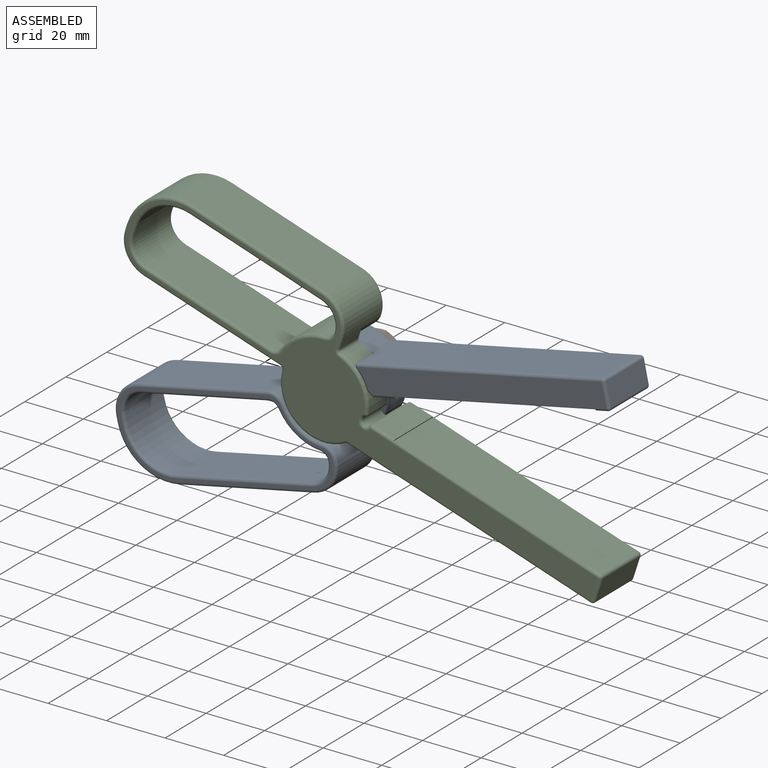
[diagram: assembled view]
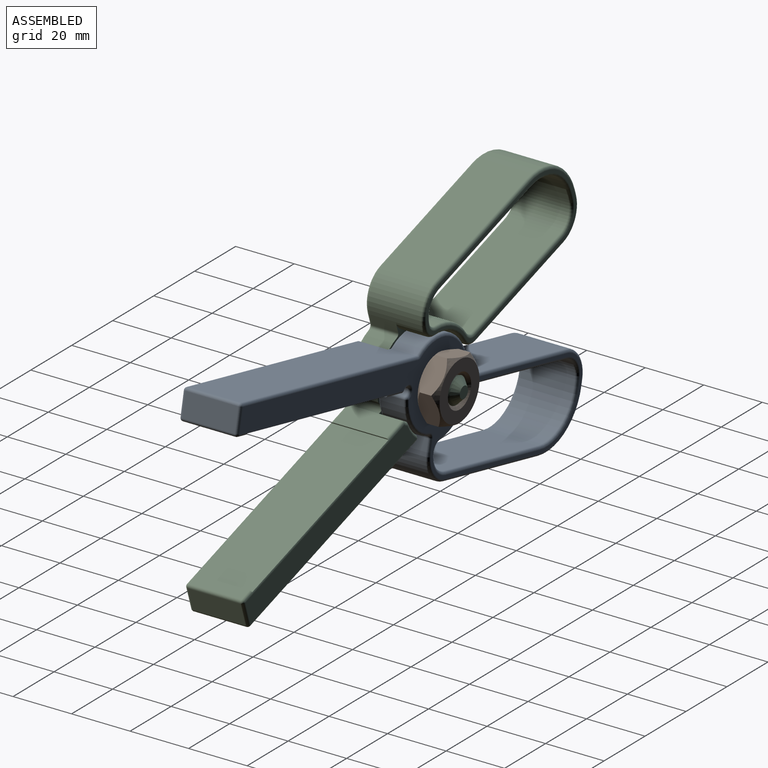
[diagram: assembled view, second angle]
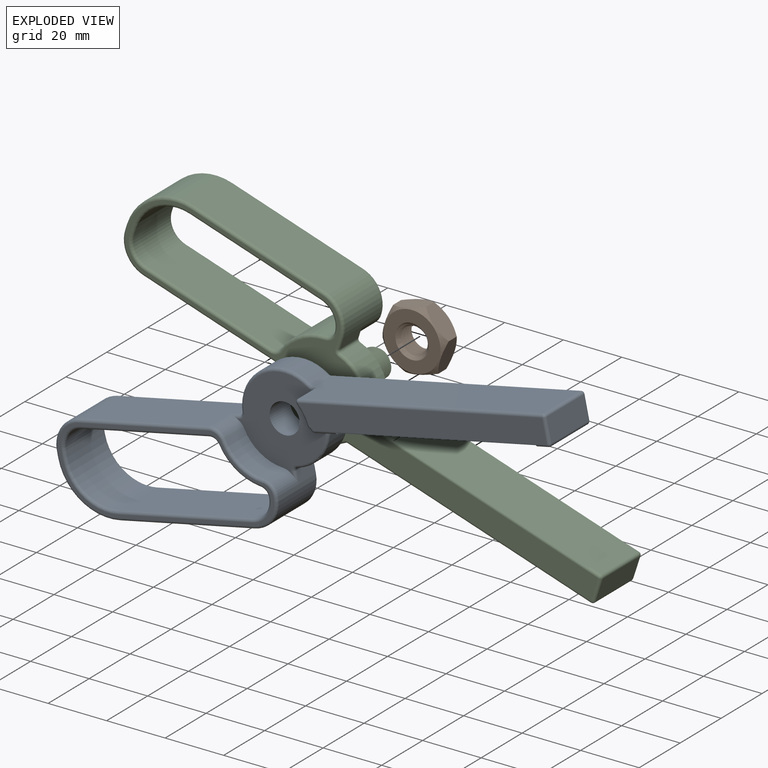
[diagram: exploded view]
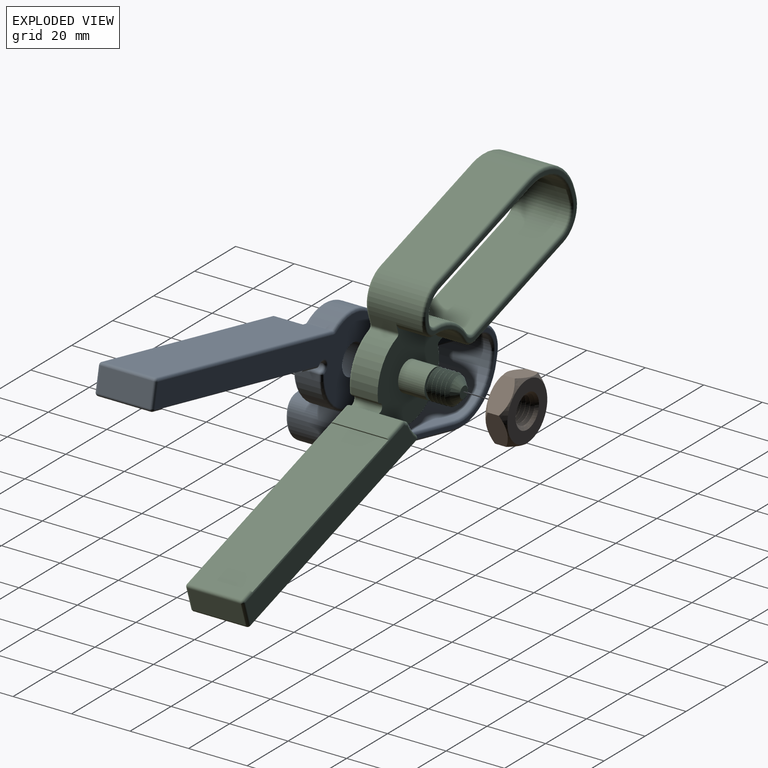
[diagram: exploded view, second angle]
ASSEMBLY  parts=3 mates=2
PART A: 110 faces, bbox 176.5x20x47.7 mm
  f0: plane 18x4mm, normal (0,0,-1), area 72mm2, adj f23,f88,f90,f105
  f1: plane 49.03x18mm, normal (0,0,1), area 844.5mm2, adj f27,f29,f36,f50,f57,f83
  f2: plane 73x28mm, normal (0,-1,0), area 166.8mm2, adj f55,f56,f57,f58,f59,f60,f61,f62
  f3: cylinder r=15mm len=13.88mm, axis (0,-1,0), area 162mm2, adj f26,f40,f41,f42
  f4: plane 18x7.71mm, normal (0,0,-1), area 138.8mm2, adj f22,f88,f90,f94
  f5: plane 85.29x8mm, normal (0,-1,0), area 667.9mm2, adj f89,f90,f92,f100,f109
  f6: plane 87.38x18mm, normal (0,0,1), area 1551.9mm2, adj f37,f54,f87,f89,f98,f106
  f7: cylinder r=15mm len=25.86mm, axis (0,-1,0), area 278.5mm2, adj f36,f37,f52,f85
  f8: plane 173x43mm, normal (0,1,0), area 1438.4mm2, adj f11,f42,f43,f44,f45,f46,f47,f48
  f9: plane 32.53x30.78mm, normal (0,-1,0), area 577mm2, adj f10,f11,f12,f21,f25,f27,f38,f39
  f10: cylinder r=1.5mm len=18mm, axis (0,1,0), area 60mm2, adj f9,f40,f41,f91,f92,f94,f96
  f11: cylinder r=5.15mm len=10.3mm, axis (0,-1,0), area 323.6mm2, adj f8,f9
  f12: cylinder r=15.4mm len=9mm, axis (0,-1,0), area 62.2mm2, adj f9,f91,f98,f100
  f13: plane 18x8mm, normal (1,0,0), area 144mm2, adj f102,f105,f106,f109
  f14: cylinder r=18mm len=18mm, axis (0,1,0), area 321.1mm2, adj f32,f33,f70,f78
  f15: plane 47x18mm, normal (0,0,-1), area 846mm2, adj f28,f35,f46,f64
  f16: plane 18x4.03mm, normal (1,0,0), area 34.5mm2, adj f25,f26,f28,f38,f44,f60
  f17: plane 44.88x18mm, normal (0,0,-1), area 807.8mm2, adj f31,f33,f66,f74
  f18: plane 47x18mm, normal (0,0,1), area 846mm2, adj f30,f34,f71,f81
  f19: plane 18x2mm, normal (1,0,0), area 36mm2, adj f31,f34,f67,f77
  f20: plane 18x2mm, normal (-1,0,0), area 36mm2, adj f29,f35,f48,f61
  f21: cylinder r=15.4mm len=11.16mm, axis (0,-1,0), area 149.1mm2, adj f9,f25,f27,f56
  f22: plane 19.83x0.6mm, normal (1,0,0), area 11.6mm2, adj f4,f24,f88,f90
  f23: plane 19.83x0.6mm, normal (-1,0,0), area 11.6mm2, adj f0,f24,f88,f90
  f24: plane 70x19.83mm, normal (0,0,-1), area 1388.3mm2, adj f22,f23,f88,f90
  f25: cylinder r=5mm len=10mm, axis (0,-1,0), area 60.8mm2, adj f9,f16,f21,f38,f58
  f26: cylinder r=1mm len=8mm, axis (0,-1,0), area 12.1mm2, adj f3,f16,f39,f43
  f27: cylinder r=5mm len=10mm, axis (0,-1,0), area 60.8mm2, adj f1,f9,f21,f55,f83
  f28: cylinder r=10mm len=18mm, axis (0,1,0), area 282.7mm2, adj f15,f16,f45,f62
  f29: cylinder r=10mm len=18mm, axis (0,1,0), area 282.7mm2, adj f1,f20,f49,f59
  f30: cylinder r=7mm len=18mm, axis (0,-1,0), area 194mm2, adj f18,f32,f73,f82
  f31: cylinder r=7mm len=18mm, axis (0,-1,0), area 197.9mm2, adj f17,f19,f65,f75
  f32: cylinder r=3mm len=18mm, axis (0,1,0), area 70.8mm2, adj f14,f30,f72,f80
  f33: cylinder r=3mm len=18mm, axis (0,1,0), area 69.2mm2, adj f14,f17,f68,f76
  f34: cylinder r=15mm len=18mm, axis (0,1,0), area 424.1mm2, adj f18,f19,f69,f79
  f35: cylinder r=18mm len=18mm, axis (0,-1,0), area 508.9mm2, adj f15,f20,f47,f63
  f36: cylinder r=1mm len=8mm, axis (0,-1,0), area 12.1mm2, adj f1,f7,f51,f84
  f37: cylinder r=1mm len=8mm, axis (0,-1,0), area 6.5mm2, adj f6,f7,f53,f86
  f38: cylinder r=1mm len=3.81mm, axis (0,0,-1), area 3.4mm2, adj f9,f16,f25,f39
  f39: torus R=2mm, axis (0,-1,0), area 3.2mm2, adj f9,f26,f38,f40
  f40: torus R=14mm, axis (0,-1,0), area 32.1mm2, adj f3,f9,f10,f39,f41
  f41: cylinder r=1mm len=8.93mm, axis (0,1,0), area 10.6mm2, adj f3,f10,f40,f97
  f42: torus R=14mm, axis (0,1,0), area 31mm2, adj f3,f8,f43,f97
  f43: torus R=2mm, axis (0,1,0), area 3.2mm2, adj f8,f26,f42,f44
  f44: cylinder r=1mm len=4.03mm, axis (0,0,1), area 6.3mm2, adj f8,f16,f43,f45
  f45: torus R=9mm, axis (0,1,0), area 23.8mm2, adj f8,f28,f44,f46
  f46: cylinder r=1mm len=47mm, axis (1,0,0), area 73.8mm2, adj f8,f15,f45,f47
  f47: torus R=17mm, axis (0,1,0), area 43.5mm2, adj f8,f35,f46,f48
  f48: cylinder r=1mm len=2mm, axis (0,0,-1), area 3.1mm2, adj f8,f20,f47,f49
  f49: torus R=9mm, axis (0,1,0), area 23.8mm2, adj f8,f29,f48,f50
  f50: cylinder r=1mm len=49.03mm, axis (-1,0,0), area 77mm2, adj f1,f8,f49,f51
  f51: torus R=2mm, axis (0,1,0), area 3.2mm2, adj f8,f36,f50,f52
  f52: torus R=14mm, axis (0,1,0), area 53.4mm2, adj f7,f8,f51,f53
  f53: torus R=2mm, axis (0,1,0), area 1.7mm2, adj f8,f37,f52,f54
  f54: cylinder r=1mm len=87.38mm, axis (-1,0,0), area 137.3mm2, adj f6,f8,f53,f104
  f55: torus R=4mm, axis (0,1,0), area 9.6mm2, adj f2,f27,f56,f57
  f56: torus R=16.4mm, axis (0,1,0), area 26.6mm2, adj f2,f21,f55,f58
  f57: cylinder r=1mm len=45.22mm, axis (1,0,0), area 71mm2, adj f1,f2,f55,f59
  f58: torus R=4mm, axis (0,1,0), area 9.6mm2, adj f2,f25,f56,f60
  f59: torus R=9mm, axis (0,1,0), area 23.8mm2, adj f2,f29,f57,f61
  f60: cylinder r=1mm len=1mm, axis (0,0,-1), area 0.3mm2, adj f2,f16,f58,f62
  f61: cylinder r=1mm len=2mm, axis (0,0,1), area 3.1mm2, adj f2,f20,f59,f63
  f62: torus R=9mm, axis (0,1,0), area 23.8mm2, adj f2,f28,f60,f64
  f63: torus R=17mm, axis (0,1,0), area 43.5mm2, adj f2,f35,f61,f64
  f64: cylinder r=1mm len=47mm, axis (-1,0,0), area 73.8mm2, adj f2,f15,f62,f63
  f65: torus R=8mm, axis (0,1,0), area 18.2mm2, adj f8,f31,f66,f67
  f66: cylinder r=1mm len=44.88mm, axis (1,0,0), area 70.5mm2, adj f8,f17,f65,f68
  f67: cylinder r=1mm len=2mm, axis (0,0,1), area 3.1mm2, adj f8,f19,f65,f69
  f68: torus R=4mm, axis (0,1,0), area 6.8mm2, adj f8,f33,f66,f70
  f69: torus R=16mm, axis (0,1,0), area 37.9mm2, adj f8,f34,f67,f71
  f70: torus R=17mm, axis (0,1,0), area 27.5mm2, adj f8,f14,f68,f72
  f71: cylinder r=1mm len=47mm, axis (-1,0,0), area 73.8mm2, adj f8,f18,f69,f73
  f72: torus R=4mm, axis (0,1,0), area 6.9mm2, adj f8,f32,f70,f73
  f73: torus R=8mm, axis (0,1,0), area 17.8mm2, adj f8,f30,f71,f72
  f74: cylinder r=1mm len=44.88mm, axis (-1,0,0), area 70.5mm2, adj f2,f17,f75,f76
  f75: torus R=8mm, axis (0,1,0), area 18.2mm2, adj f2,f31,f74,f77
  f76: torus R=4mm, axis (0,1,0), area 6.8mm2, adj f2,f33,f74,f78
  f77: cylinder r=1mm len=2mm, axis (0,0,-1), area 3.1mm2, adj f2,f19,f75,f79
  f78: torus R=17mm, axis (0,1,0), area 27.5mm2, adj f2,f14,f76,f80
  f79: torus R=16mm, axis (0,1,0), area 37.9mm2, adj f2,f34,f77,f81
  f80: torus R=4mm, axis (0,1,0), area 6.9mm2, adj f2,f32,f78,f82
  f81: cylinder r=1mm len=47mm, axis (1,0,0), area 73.8mm2, adj f2,f18,f79,f82
  f82: torus R=8mm, axis (0,1,0), area 17.8mm2, adj f2,f30,f80,f81
  f83: cylinder r=1mm len=3.81mm, axis (1,0,0), area 3.4mm2, adj f1,f9,f27,f84
  f84: torus R=2mm, axis (0,-1,0), area 3.2mm2, adj f9,f36,f83,f85
  f85: torus R=14mm, axis (0,-1,0), area 53.4mm2, adj f7,f9,f84,f86
  f86: torus R=2mm, axis (0,-1,0), area 1.7mm2, adj f9,f37,f85,f87
  f87: cylinder r=1mm len=2.09mm, axis (1,0,0), area 2.3mm2, adj f6,f9,f86,f98
  f88: cylinder r=1mm len=81.71mm, axis (1,0,0), area 47.2mm2, adj f0,f4,f8,f22,f23,f24,f95,f103
  f89: cylinder r=1mm len=85.29mm, axis (1,0,0), area 134mm2, adj f5,f6,f99,f108
  f90: cylinder r=1mm len=81.71mm, axis (-1,0,0), area 47.2mm2, adj f0,f4,f5,f22,f23,f24,f93,f107
  f91: cylinder r=1mm len=9mm, axis (0,-1,0), area 8.2mm2, adj f9,f10,f12,f101
  f92: torus R=2.5mm, axis (0,1,0), area 1.9mm2, adj f5,f10,f93,f101
  f93: sphere r=1mm, area 1.2mm2, adj f90,f92,f94
  f94: cylinder r=1mm len=18mm, axis (0,1,0), area 20.9mm2, adj f4,f10,f93,f95
  f95: sphere r=1mm, area 1.2mm2, adj f88,f94,f96
  f96: torus R=2.5mm, axis (0,1,0), area 11.2mm2, adj f8,f10,f95,f97
  f97: sphere r=1mm, area 1.2mm2, adj f41,f42,f96
  f98: cylinder r=1mm len=10mm, axis (0,-1,0), area 19.9mm2, adj f6,f9,f12,f87,f99
  f99: sphere r=1mm, area 2.2mm2, adj f89,f98,f100
  f100: torus R=16.4mm, axis (0,1,0), area 11.1mm2, adj f5,f12,f99,f101
  f101: sphere r=1mm, area 0.9mm2, adj f91,f92,f100
  f102: cylinder r=1mm len=8mm, axis (0,0,-1), area 12.6mm2, adj f8,f13,f103,f104
  f103: sphere r=1mm, area 1.6mm2, adj f88,f102,f105
  f104: sphere r=1mm, area 1.6mm2, adj f54,f102,f106
  f105: cylinder r=1mm len=18mm, axis (0,1,0), area 28.3mm2, adj f0,f13,f103,f107
  f106: cylinder r=1mm len=18mm, axis (0,1,0), area 28.3mm2, adj f6,f13,f104,f108
  f107: sphere r=1mm, area 1.6mm2, adj f90,f105,f109
  f108: sphere r=1mm, area 1.6mm2, adj f89,f106,f109
  f109: cylinder r=1mm len=8mm, axis (0,0,1), area 12.6mm2, adj f5,f13,f107,f108
PART B: 15 faces, bbox 8.7x23.1x23.1 mm
  f0: plane 19.5x19.5mm, normal (1,0,0), area 196.6mm2, adj f4,f8
  f1: plane 19.5x19.5mm, normal (-1,0,0), area 196.6mm2, adj f3,f7
  f2: cylinder r=4.2mm len=8.4mm, axis (-1,0,0), area 3.9mm2, adj f3,f4,f5,f6
  f3: cone r=5.7mm half-angle=45deg, axis (-1,0,0), area 41mm2, adj f1,f2,f5,f6
  f4: cone r=4.2mm half-angle=45deg, axis (1,0,0), area 41.1mm2, adj f0,f2,f5,f6
  f5: bspline ~12.6x10.91mm, area 170.6mm2, adj f2,f3,f4,f6
  f6: bspline ~12.6x10.91mm, area 168.2mm2, adj f2,f3,f4,f5
  f7: cone r=2mm half-angle=45deg, axis (1,0,0), area 67.5mm2, adj f1,f9,f10,f11,f12,f13,f14
  f8: cone r=2mm half-angle=45deg, axis (-1,0,0), area 67.5mm2, adj f0,f9,f10,f11,f12,f13,f14
  f9: plane 10x7.01mm, normal (0,-0.87,-0.5), area 68.6mm2, adj f7,f8,f10,f14
  f10: plane 10x7.01mm, normal (0,-0.87,0.5), area 68.6mm2, adj f7,f8,f9,f11
  f11: plane 11.57x7.02mm, normal (0,0,1), area 68.6mm2, adj f7,f8,f10,f12
  f12: plane 10x7.01mm, normal (0,0.87,0.5), area 68.6mm2, adj f7,f8,f11,f13
  f13: plane 10x7.01mm, normal (0,0.87,-0.5), area 68.6mm2, adj f7,f8,f12,f14
  f14: plane 11.57x7.02mm, normal (0,0,-1), area 68.6mm2, adj f7,f8,f9,f13
PART C: 112 faces, bbox 177.5x30x48.8 mm
  f0: plane 18x7.71mm, normal (0,0,1), area 138.8mm2, adj f34,f50,f67,f96
  f1: plane 49.03x18mm, normal (0,0,-1), area 848.3mm2, adj f14,f37,f38,f46,f55,f76
  f2: plane 18x4.03mm, normal (1,0,0), area 38.3mm2, adj f14,f35,f36,f39,f61,f71
  f3: cylinder r=15mm len=13.88mm, axis (0,1,0), area 182.2mm2, adj f14,f36,f49,f63
  f4: plane 85.29x8mm, normal (0,1,0), area 667.9mm2, adj f96,f98,f100,f101,f109
  f5: plane 173x43mm, normal (0,-1,0), area 1521.7mm2, adj f51,f52,f53,f54,f55,f56,f57,f58
  f6: cylinder r=5mm len=10mm, axis (0,-1,0), area 1.6mm2, adj f7,f11,f19,f20
  f7: cylinder r=5mm len=10mm, axis (0,-1,0), area 1.6mm2, adj f6,f8,f19,f20
  f8: cylinder r=5mm len=10mm, axis (0,-1,0), area 1.6mm2, adj f7,f9,f19,f20
  f9: cylinder r=5mm len=10mm, axis (0,-1,0), area 1.6mm2, adj f8,f10,f19,f20
  f10: cylinder r=5mm len=10mm, axis (0,-1,0), area 283.8mm2, adj f9,f14,f19,f20,f21
  f11: cylinder r=5mm len=1.09mm, axis (0,-1,0), area 0mm2, adj f6,f18,f19
  f12: plane 18x4mm, normal (0,0,1), area 72mm2, adj f32,f67,f96,f105
  f13: plane 87.38x18mm, normal (0,0,-1), area 1554mm2, adj f14,f47,f51,f100,f106,f110
  f14: plane 35.53x34.78mm, normal (0,1,0), area 646.5mm2, adj f1,f2,f3,f10,f13,f15,f16,f22
  f15: cylinder r=15mm len=25.86mm, axis (0,1,0), area 313.3mm2, adj f14,f46,f47,f53
  f16: cylinder r=1.5mm len=18mm, axis (0,-1,0), area 60mm2, adj f14,f48,f49,f50,f65,f98
  f17: plane 4x4mm, normal (0,1,0), area 12.6mm2, adj f18
  f18: cone r=5mm half-angle=45deg, axis (0,-1,0), area 68.6mm2, adj f11,f17,f19,f20
  f19: bspline ~11.55x10mm, area 202mm2, adj f6,f7,f8,f9,f10,f11,f18,f20
  f20: bspline ~11.55x10mm, area 202mm2, adj f6,f7,f8,f9,f10,f18,f19,f21
  f21: plane 11.03x11.03mm, normal (0,1,0), area 17.5mm2, adj f10,f19,f20
  f22: cylinder r=15.4mm len=9mm, axis (0,1,0), area 62.2mm2, adj f14,f48,f101,f110
  f23: plane 18x8mm, normal (1,0,0), area 144mm2, adj f102,f105,f106,f109
  f24: plane 73x28mm, normal (0,1,0), area 166.8mm2, adj f68,f69,f70,f71,f72,f73,f74,f75
  f25: plane 47x18mm, normal (0,0,1), area 846mm2, adj f39,f45,f59,f68
  f26: plane 18x2mm, normal (-1,0,0), area 36mm2, adj f38,f45,f57,f72
  f27: plane 44.88x18mm, normal (0,0,1), area 807.8mm2, adj f40,f42,f78,f94
  f28: plane 18x2mm, normal (1,0,0), area 36mm2, adj f40,f44,f81,f90
  f29: plane 47x18mm, normal (0,0,-1), area 846mm2, adj f41,f44,f85,f87
  f30: cylinder r=18mm len=18mm, axis (0,1,0), area 321.1mm2, adj f42,f43,f82,f93
  f31: cylinder r=15.4mm len=11.16mm, axis (0,1,0), area 149.1mm2, adj f14,f35,f37,f75
  f32: plane 19.6x0.4mm, normal (-1,0,0), area 7.6mm2, adj f12,f33,f67,f96
  f33: plane 70x19.6mm, normal (0,0,1), area 1372mm2, adj f32,f34,f67,f96
  f34: plane 19.6x0.4mm, normal (1,0,0), area 7.6mm2, adj f0,f33,f67,f96
  f35: cylinder r=5mm len=9mm, axis (0,1,0), area 59.5mm2, adj f2,f14,f31,f73
  f36: cylinder r=1mm len=9mm, axis (0,1,0), area 13.6mm2, adj f2,f3,f14,f62
  f37: cylinder r=5mm len=9mm, axis (0,1,0), area 59.5mm2, adj f1,f14,f31,f77
  f38: cylinder r=10mm len=18mm, axis (0,1,0), area 282.7mm2, adj f1,f26,f56,f74
  f39: cylinder r=10mm len=18mm, axis (0,1,0), area 282.7mm2, adj f2,f25,f60,f69
  f40: cylinder r=7mm len=18mm, axis (0,-1,0), area 197.9mm2, adj f27,f28,f79,f92
  f41: cylinder r=7mm len=18mm, axis (0,-1,0), area 194mm2, adj f29,f43,f86,f89
  f42: cylinder r=3mm len=18mm, axis (0,1,0), area 69.2mm2, adj f27,f30,f80,f95
  f43: cylinder r=3mm len=18mm, axis (0,1,0), area 70.8mm2, adj f30,f41,f84,f91
  f44: cylinder r=15mm len=18mm, axis (0,1,0), area 424.1mm2, adj f28,f29,f83,f88
  f45: cylinder r=18mm len=18mm, axis (0,-1,0), area 508.9mm2, adj f25,f26,f58,f70
  f46: cylinder r=1mm len=9mm, axis (0,1,0), area 13.6mm2, adj f1,f14,f15,f54
  f47: cylinder r=1mm len=9mm, axis (0,1,0), area 7.3mm2, adj f13,f14,f15,f52
  f48: cylinder r=1mm len=9mm, axis (0,1,0), area 8.2mm2, adj f14,f16,f22,f99
  f49: cylinder r=1mm len=9mm, axis (0,-1,0), area 11.2mm2, adj f3,f14,f16,f64
  f50: cylinder r=1mm len=18mm, axis (0,-1,0), area 20.9mm2, adj f0,f16,f66,f97
  f51: cylinder r=1mm len=87.38mm, axis (-1,0,0), area 137.3mm2, adj f5,f13,f52,f104
  f52: torus R=2mm, axis (0,1,0), area 1.7mm2, adj f5,f47,f51,f53
  f53: torus R=14mm, axis (0,1,0), area 53.4mm2, adj f5,f15,f52,f54
  f54: torus R=2mm, axis (0,1,0), area 3.2mm2, adj f5,f46,f53,f55
  f55: cylinder r=1mm len=49.03mm, axis (-1,0,0), area 77mm2, adj f1,f5,f54,f56
  f56: torus R=9mm, axis (0,1,0), area 23.8mm2, adj f5,f38,f55,f57
  f57: cylinder r=1mm len=2mm, axis (0,0,1), area 3.1mm2, adj f5,f26,f56,f58
  f58: torus R=17mm, axis (0,1,0), area 43.5mm2, adj f5,f45,f57,f59
  f59: cylinder r=1mm len=47mm, axis (1,0,0), area 73.8mm2, adj f5,f25,f58,f60
  f60: torus R=9mm, axis (0,1,0), area 23.8mm2, adj f5,f39,f59,f61
  f61: cylinder r=1mm len=4.03mm, axis (0,0,-1), area 6.3mm2, adj f2,f5,f60,f62
  f62: torus R=2mm, axis (0,1,0), area 3.2mm2, adj f5,f36,f61,f63
  f63: torus R=14mm, axis (0,1,0), area 31mm2, adj f3,f5,f62,f64
  f64: sphere r=1mm, area 1.4mm2, adj f49,f63,f65
  f65: torus R=2.5mm, axis (0,1,0), area 11.2mm2, adj f5,f16,f64,f66
  f66: sphere r=1mm, area 1.2mm2, adj f50,f65,f67
  f67: cylinder r=1mm len=81.71mm, axis (1,0,0), area 63.4mm2, adj f0,f5,f12,f32,f33,f34,f66,f103
  f68: cylinder r=1mm len=47mm, axis (-1,0,0), area 73.8mm2, adj f24,f25,f69,f70
  f69: torus R=9mm, axis (0,1,0), area 23.8mm2, adj f24,f39,f68,f71
  f70: torus R=17mm, axis (0,1,0), area 43.5mm2, adj f24,f45,f68,f72
  f71: cylinder r=1mm len=1mm, axis (0,0,1), area 0.3mm2, adj f2,f24,f69,f73
  f72: cylinder r=1mm len=2mm, axis (0,0,-1), area 3.1mm2, adj f24,f26,f70,f74
  f73: torus R=4mm, axis (0,1,0), area 9.6mm2, adj f24,f35,f71,f75
  f74: torus R=9mm, axis (0,1,0), area 23.8mm2, adj f24,f38,f72,f76
  f75: torus R=16.4mm, axis (0,1,0), area 26.6mm2, adj f24,f31,f73,f77
  f76: cylinder r=1mm len=45.22mm, axis (1,0,0), area 71mm2, adj f1,f24,f74,f77
  f77: torus R=4mm, axis (0,1,0), area 9.6mm2, adj f24,f37,f75,f76
  f78: cylinder r=1mm len=44.88mm, axis (-1,0,0), area 70.5mm2, adj f24,f27,f79,f80
  f79: torus R=8mm, axis (0,1,0), area 18.2mm2, adj f24,f40,f78,f81
  f80: torus R=4mm, axis (0,1,0), area 6.8mm2, adj f24,f42,f78,f82
  f81: cylinder r=1mm len=2mm, axis (0,0,1), area 3.1mm2, adj f24,f28,f79,f83
  f82: torus R=17mm, axis (0,1,0), area 27.5mm2, adj f24,f30,f80,f84
  f83: torus R=16mm, axis (0,1,0), area 37.9mm2, adj f24,f44,f81,f85
  f84: torus R=4mm, axis (0,1,0), area 6.9mm2, adj f24,f43,f82,f86
  f85: cylinder r=1mm len=47mm, axis (1,0,0), area 73.8mm2, adj f24,f29,f83,f86
  f86: torus R=8mm, axis (0,1,0), area 17.8mm2, adj f24,f41,f84,f85
  f87: cylinder r=1mm len=47mm, axis (-1,0,0), area 73.8mm2, adj f5,f29,f88,f89
  f88: torus R=16mm, axis (0,1,0), area 37.9mm2, adj f5,f44,f87,f90
  f89: torus R=8mm, axis (0,1,0), area 17.8mm2, adj f5,f41,f87,f91
  f90: cylinder r=1mm len=2mm, axis (0,0,-1), area 3.1mm2, adj f5,f28,f88,f92
  f91: torus R=4mm, axis (0,1,0), area 6.9mm2, adj f5,f43,f89,f93
  f92: torus R=8mm, axis (0,1,0), area 18.2mm2, adj f5,f40,f90,f94
  f93: torus R=17mm, axis (0,1,0), area 27.5mm2, adj f5,f30,f91,f95
  f94: cylinder r=1mm len=44.88mm, axis (1,0,0), area 70.5mm2, adj f5,f27,f92,f95
  f95: torus R=4mm, axis (0,1,0), area 6.8mm2, adj f5,f42,f93,f94
  f96: cylinder r=1mm len=81.71mm, axis (-1,0,0), area 63.4mm2, adj f0,f4,f12,f32,f33,f34,f97,f107
  f97: sphere r=1mm, area 1.2mm2, adj f50,f96,f98
  f98: torus R=2.5mm, axis (0,1,0), area 1.9mm2, adj f4,f16,f97,f99
  f99: sphere r=1mm, area 0.9mm2, adj f48,f98,f101
  f100: cylinder r=1mm len=85.29mm, axis (1,0,0), area 134mm2, adj f4,f13,f108,f111
  f101: torus R=16.4mm, axis (0,1,0), area 11.1mm2, adj f4,f22,f99,f111
  f102: cylinder r=1mm len=8mm, axis (0,0,1), area 12.6mm2, adj f5,f23,f103,f104
  f103: sphere r=1mm, area 1.6mm2, adj f67,f102,f105
  f104: sphere r=1mm, area 1.6mm2, adj f51,f102,f106
  f105: cylinder r=1mm len=18mm, axis (0,-1,0), area 28.3mm2, adj f12,f23,f103,f107
  f106: cylinder r=1mm len=18mm, axis (0,1,0), area 28.3mm2, adj f13,f23,f104,f108
  f107: sphere r=1mm, area 2.1mm2, adj f96,f105,f109
  f108: sphere r=1mm, area 1mm2, adj f100,f106,f109
  f109: cylinder r=1mm len=8mm, axis (0,0,-1), area 12.6mm2, adj f4,f23,f107,f108
  f110: cylinder r=1mm len=9mm, axis (0,1,0), area 19.4mm2, adj f13,f14,f22,f111
  f111: sphere r=1mm, area 2.6mm2, adj f100,f101,f110
PLACE A rot(axis=(0,-1,0),12deg) t=(-74.71,53.54,102.44)mm
PLACE B rot(axis=(0.51,-0.51,-0.7),110.2deg) t=(-219.36,61.04,61.47)mm
PLACE C rot(axis=(0,1,0),18deg) t=(-76.7,53.54,15.12)mm
MATE slider B.f2 <-> C.f6  axis (0,-1,0) through (-219.36,53.54,61.47)mm
MATE revolute A.f42 <-> C.f18  axis (0,-1,0) through (-219.36,43.54,61.47)mm
